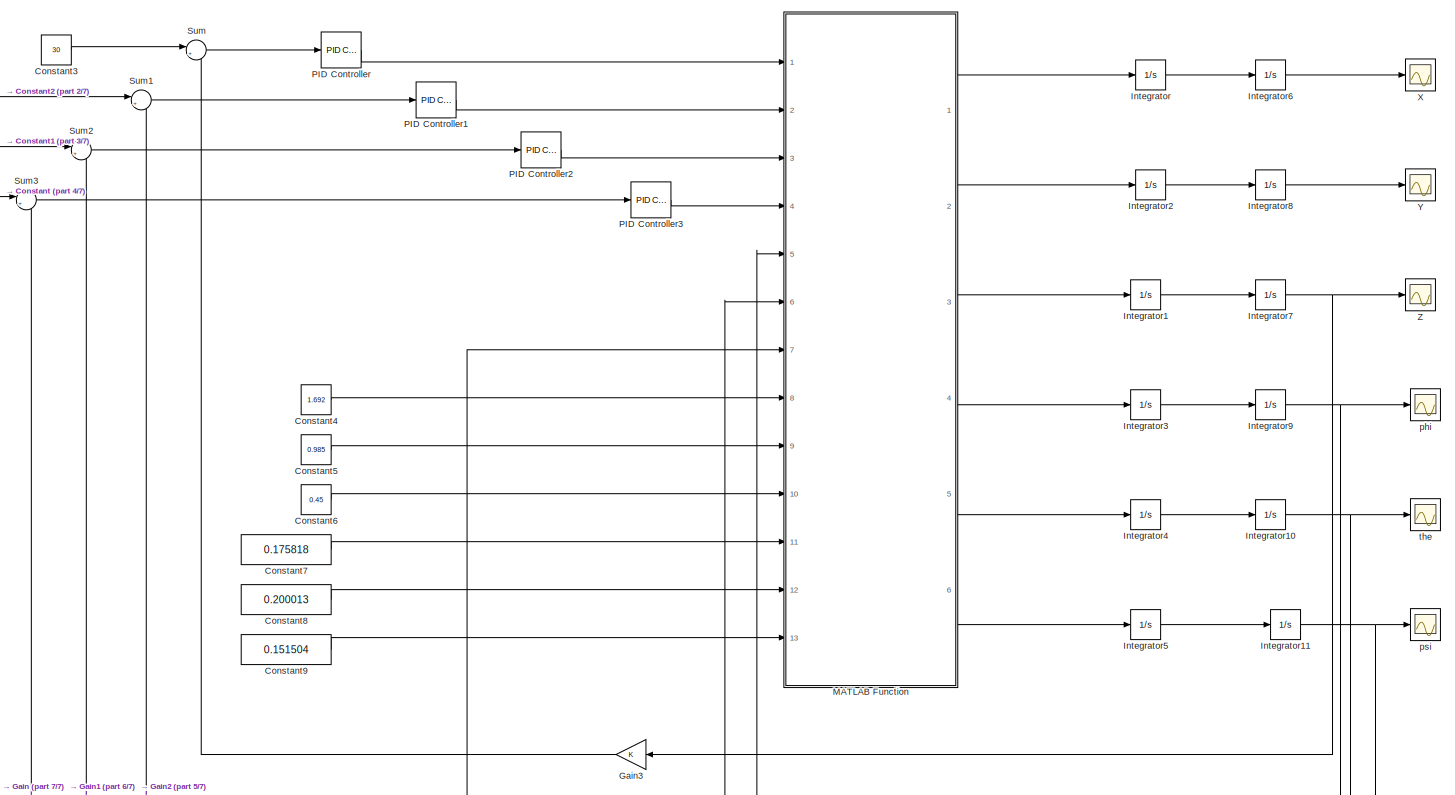
[diagram: root canvas - part 1/7, most of the canvas]
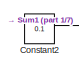
[diagram: root canvas - part 2/7, top left region]
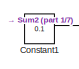
[diagram: root canvas - part 3/7, top left region]
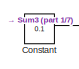
[diagram: root canvas - part 4/7, top left region]
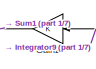
[diagram: root canvas - part 5/7, bottom center region]
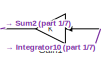
[diagram: root canvas - part 6/7, bottom center region]
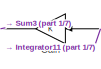
[diagram: root canvas - part 7/7, bottom left region]
MODEL slx_bbde0dbb951a
KIND model
CONFIG AbsTol = auto
CONFIG EnableMultiTasking = off
CONFIG FixedStep = auto
CONFIG MaxStep = auto
CONFIG MinStep = auto
CONFIG RelTol = 1e-3
CONFIG SampleTimeConstraint = Unconstrained
CONFIG SolverName = VariableStepAuto
CONFIG StartTime = 0.0
CONFIG StopTime = 10.0
BLOCK [Constant] Constant
  Value = 0.1
BLOCK [Constant] Constant1
  Value = 0.1
BLOCK [Constant] Constant2
  Value = 0.1
BLOCK [Constant] Constant3
  Value = 30
BLOCK [Constant] Constant4
  Value = 1.692
BLOCK [Constant] Constant5
  Value = 0.985
BLOCK [Constant] Constant6
  Value = 0.45
BLOCK [Constant] Constant7
  Value = 0.175818
BLOCK [Constant] Constant8
  Value = 0.200013
BLOCK [Constant] Constant9
  Value = 0.151504
BLOCK [Gain] Gain
  NameLocation = top
BLOCK [Gain] Gain1
  NameLocation = top
BLOCK [Gain] Gain2
  NameLocation = top
BLOCK [Gain] Gain3
  NameLocation = top
BLOCK [Integrator] Integrator
  Ports = [1, 1]
BLOCK [Integrator] Integrator1
  Ports = [1, 1]
BLOCK [Integrator] Integrator10
  Ports = [1, 1]
BLOCK [Integrator] Integrator11
  Ports = [1, 1]
BLOCK [Integrator] Integrator2
  Ports = [1, 1]
BLOCK [Integrator] Integrator3
  Ports = [1, 1]
BLOCK [Integrator] Integrator4
  Ports = [1, 1]
BLOCK [Integrator] Integrator5
  Ports = [1, 1]
BLOCK [Integrator] Integrator6
  Ports = [1, 1]
BLOCK [Integrator] Integrator7
  Ports = [1, 1]
BLOCK [Integrator] Integrator8
  Ports = [1, 1]
BLOCK [Integrator] Integrator9
  Ports = [1, 1]
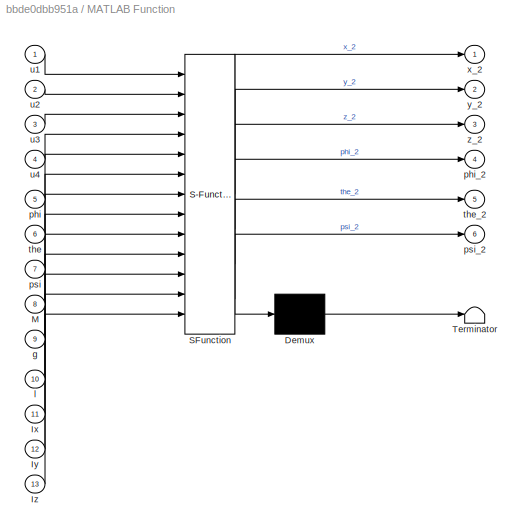
BLOCK [SubSystem] MATLAB Function
  ErrorFcn = Stateflow.Translate.translate
  PermitHierarchicalResolution = ExplicitOnly
  Ports = [13, 6]
  RequestExecContextInheritance = off
  SFBlockType = MATLAB Function
  TreatAsAtomicUnit = on
BLOCK [Demux] MATLAB Function/ Demux 
  Outputs = 1
  Ports = [1, 1]
BLOCK [S-Function] MATLAB Function/ SFunction 
  EnableBusSupport = on
  FunctionName = sf_sfun
  PortCounts = [13 7]
  Ports = [13, 7]
  SFcnIsStateOwnerBlock = off
  SFunctionDeploymentMode = off
  Tag = Stateflow S-Function 2
BLOCK [Terminator] MATLAB Function/ Terminator 
BLOCK [Inport] MATLAB Function/Ix
  Port = 11
BLOCK [Inport] MATLAB Function/Iy
  Port = 12
BLOCK [Inport] MATLAB Function/Iz
  Port = 13
BLOCK [Inport] MATLAB Function/M
  Port = 8
BLOCK [Inport] MATLAB Function/g
  Port = 9
BLOCK [Inport] MATLAB Function/l
  Port = 10
BLOCK [Inport] MATLAB Function/phi
  Port = 5
BLOCK [Outport] MATLAB Function/phi_2
  Port = 4
BLOCK [Inport] MATLAB Function/psi
  Port = 7
BLOCK [Outport] MATLAB Function/psi_2
  Port = 6
BLOCK [Inport] MATLAB Function/the
  Port = 6
BLOCK [Outport] MATLAB Function/the_2
  Port = 5
BLOCK [Inport] MATLAB Function/u1
BLOCK [Inport] MATLAB Function/u2
  Port = 2
BLOCK [Inport] MATLAB Function/u3
  Port = 3
BLOCK [Inport] MATLAB Function/u4
  Port = 4
BLOCK [Outport] MATLAB Function/x_2
BLOCK [Outport] MATLAB Function/y_2
  Port = 2
BLOCK [Outport] MATLAB Function/z_2
  Port = 3
BLOCK [Reference] PID Controller  REF=pid_lib/PID Controller
  Ports = [1, 1]
  SourceBlock = pid_lib/PID Controller
  SourceProductBaseCode = SL
  SourceType = PID 1dof
BLOCK [Reference] PID Controller1  REF=pid_lib/PID Controller
  Ports = [1, 1]
  SourceBlock = pid_lib/PID Controller
  SourceProductBaseCode = SL
  SourceType = PID 1dof
BLOCK [Reference] PID Controller2  REF=pid_lib/PID Controller
  Ports = [1, 1]
  SourceBlock = pid_lib/PID Controller
  SourceProductBaseCode = SL
  SourceType = PID 1dof
BLOCK [Reference] PID Controller3  REF=pid_lib/PID Controller
  Ports = [1, 1]
  SourceBlock = pid_lib/PID Controller
  SourceProductBaseCode = SL
  SourceType = PID 1dof
BLOCK [Sum] Sum
  Inputs = |+-
  Ports = [2, 1]
BLOCK [Sum] Sum1
  Inputs = |+-
  Ports = [2, 1]
BLOCK [Sum] Sum2
  Inputs = |+-
  Ports = [2, 1]
BLOCK [Sum] Sum3
  Inputs = |+-
  Ports = [2, 1]
BLOCK [Scope] X
  Floating = off
  NumInputPorts = 1
  Ports = [1]
  ScopeSpecificationString = Simulink.scopes.TimeScopeBlockCfg('CurrentConfiguration', extmgr.ConfigurationSet(extmgr.Configuration('Core','General UI',true),extmgr.Configuration('Core','Source UI',true),extmgr.Configuration('Sources','WiredSimulink',true),extmgr.Configuration('Visuals','Time Domain',true),extmgr.Configuration('Tools','Plot Navigation',true),extmgr.Configuration('Tools','Measurements',true,'Version','2021a'))...<+19ch>
BLOCK [Scope] Y
  Floating = off
  NumInputPorts = 1
  Ports = [1]
  ScopeSpecificationString = Simulink.scopes.TimeScopeBlockCfg('CurrentConfiguration', extmgr.ConfigurationSet(extmgr.Configuration('Core','General UI',true),extmgr.Configuration('Core','Source UI',true),extmgr.Configuration('Sources','WiredSimulink',true,'DataLoggingVariableName','ScopeData1'),extmgr.Configuration('Visuals','Time Domain',true),extmgr.Configuration('Tools','Plot Navigation',true),extmgr.Configuration('Tools',...<+58ch>
BLOCK [Scope] Z
  Floating = off
  NumInputPorts = 1
  Ports = [1]
  ScopeSpecificationString = Simulink.scopes.TimeScopeBlockCfg('CurrentConfiguration', extmgr.ConfigurationSet(extmgr.Configuration('Core','General UI',true),extmgr.Configuration('Core','Source UI',true),extmgr.Configuration('Sources','WiredSimulink',true,'DataLoggingVariableName','ScopeData2'),extmgr.Configuration('Visuals','Time Domain',true),extmgr.Configuration('Tools','Plot Navigation',true),extmgr.Configuration('Tools',...<+58ch>
BLOCK [Scope] phi
  Floating = off
  NumInputPorts = 1
  Ports = [1]
  ScopeSpecificationString = Simulink.scopes.TimeScopeBlockCfg('CurrentConfiguration', extmgr.ConfigurationSet(extmgr.Configuration('Core','General UI',true),extmgr.Configuration('Core','Source UI',true),extmgr.Configuration('Sources','WiredSimulink',true,'DataLoggingVariableName','ScopeData3'),extmgr.Configuration('Visuals','Time Domain',true),extmgr.Configuration('Tools','Plot Navigation',true),extmgr.Configuration('Tools',...<+58ch>
BLOCK [Scope] psi
  Floating = off
  NumInputPorts = 1
  Ports = [1]
  ScopeSpecificationString = Simulink.scopes.TimeScopeBlockCfg('CurrentConfiguration', extmgr.ConfigurationSet(extmgr.Configuration('Core','General UI',true),extmgr.Configuration('Core','Source UI',true),extmgr.Configuration('Sources','WiredSimulink',true,'DataLoggingVariableName','ScopeData5'),extmgr.Configuration('Visuals','Time Domain',true),extmgr.Configuration('Tools','Plot Navigation',true),extmgr.Configuration('Tools',...<+58ch>
BLOCK [Scope] the
  Floating = off
  NumInputPorts = 1
  Ports = [1]
  ScopeSpecificationString = Simulink.scopes.TimeScopeBlockCfg('CurrentConfiguration', extmgr.ConfigurationSet(extmgr.Configuration('Core','General UI',true),extmgr.Configuration('Core','Source UI',true),extmgr.Configuration('Sources','WiredSimulink',true,'DataLoggingVariableName','ScopeData4'),extmgr.Configuration('Visuals','Time Domain',true),extmgr.Configuration('Tools','Plot Navigation',true),extmgr.Configuration('Tools',...<+58ch>
LINE Constant1:1 -> Sum2:1
LINE Constant2:1 -> Sum1:1
LINE Constant3:1 -> Sum:1
LINE Constant4:1 -> MATLAB Function:8
LINE Constant5:1 -> MATLAB Function:9
LINE Constant6:1 -> MATLAB Function:10
LINE Constant7:1 -> MATLAB Function:11
LINE Constant8:1 -> MATLAB Function:12
LINE Constant9:1 -> MATLAB Function:13
LINE Constant:1 -> Sum3:1
LINE Gain1:1 -> Sum2:2
LINE Gain2:1 -> Sum1:2
LINE Gain3:1 -> Sum:2
LINE Gain:1 -> Sum3:2
NET Integrator10:1 -> Gain1:1, MATLAB Function:6, the:1
NET Integrator11:1 -> Gain:1, MATLAB Function:7, psi:1
LINE Integrator1:1 -> Integrator7:1
LINE Integrator2:1 -> Integrator8:1
LINE Integrator3:1 -> Integrator9:1
LINE Integrator4:1 -> Integrator10:1
LINE Integrator5:1 -> Integrator11:1
LINE Integrator6:1 -> X:1
NET Integrator7:1 -> Gain3:1, Z:1
LINE Integrator8:1 -> Y:1
NET Integrator9:1 -> Gain2:1, MATLAB Function:5, phi:1
LINE Integrator:1 -> Integrator6:1
LINE MATLAB Function:1 -> Integrator:1
LINE MATLAB Function:2 -> Integrator2:1
LINE MATLAB Function:3 -> Integrator1:1
LINE MATLAB Function:4 -> Integrator3:1
LINE MATLAB Function:5 -> Integrator4:1
LINE MATLAB Function:6 -> Integrator5:1
LINE PID Controller1:1 -> MATLAB Function:2
LINE PID Controller2:1 -> MATLAB Function:3
LINE PID Controller3:1 -> MATLAB Function:4
LINE PID Controller:1 -> MATLAB Function:1
LINE Sum1:1 -> PID Controller1:1
LINE Sum2:1 -> PID Controller2:1
LINE Sum3:1 -> PID Controller3:1
LINE Sum:1 -> PID Controller:1
note: NET lines group one-source signal fan-out (src -> all destinations, sorted); 1:1 wires keep LINE
CHART MATLAB Function states=1 transitions=1
  STATE_LABEL 'eML_blk_kernel()'
  STATE_LABEL 'SCRIPT:\n function [x_2, y_2,z_2,phi_2,the_2,psi_2]=wurenji(u1,u2,u3,u4,phi,the,psi,M,g,l,Ix,Iy,Iz)\nx_2=u1*(cos(phi)*sin(the)*cos(psi)+sin(phi)*sin(psi))/M;\ny_2=u1*(cos(phi)*sin(the)*cos(psi)-sin(phi)*sin(psi))/M;\nz_2=-g+u1*(cos(the)*cos(phi))/M;\nphi_2=1*u2/Ix;\nthe_2=1*u3/Iy;\npsi_2=u4*l/Iz;\n'
CHART  states=0 transitions=0
